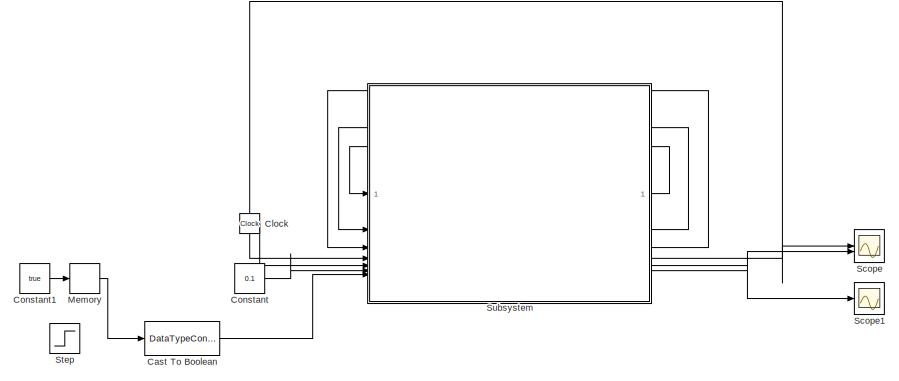
[diagram: root canvas - part 1/5, top left region]
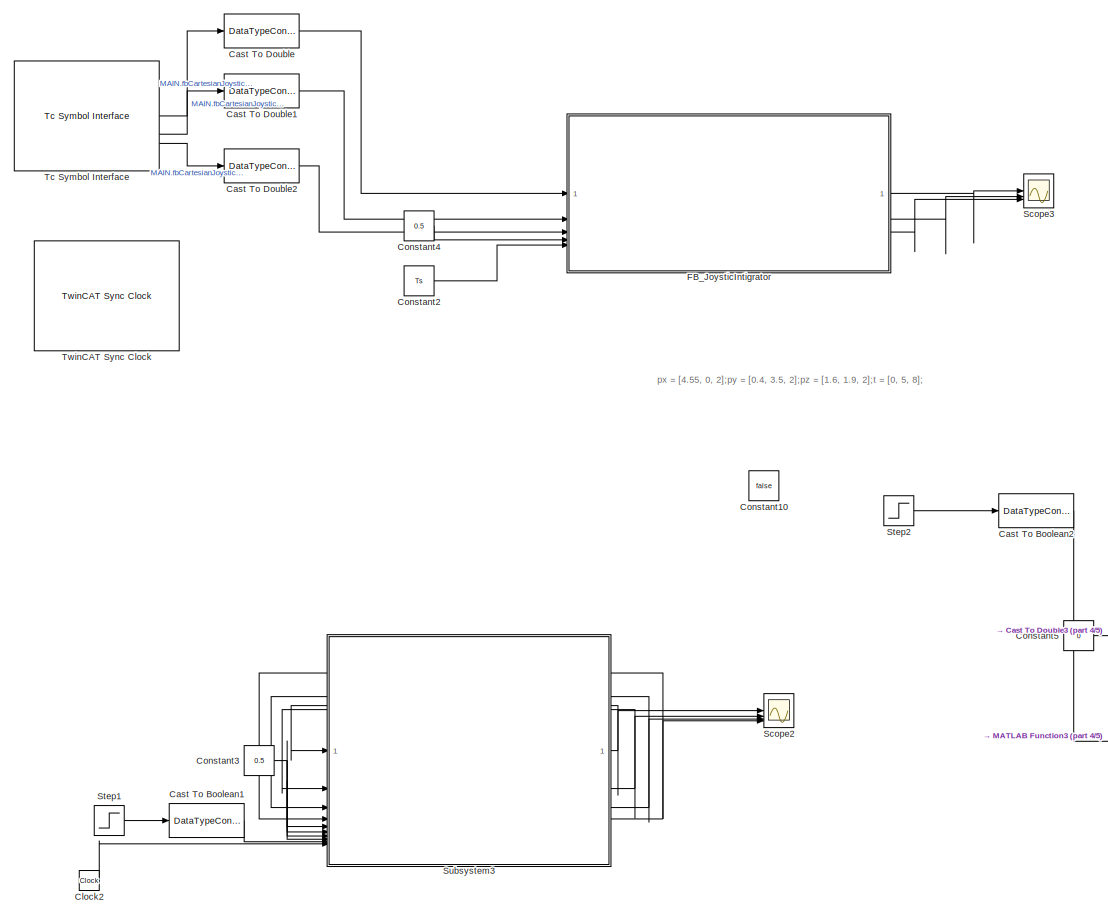
[diagram: root canvas - part 2/5, central region]
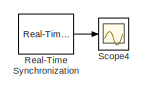
[diagram: root canvas - part 3/5, top left region]
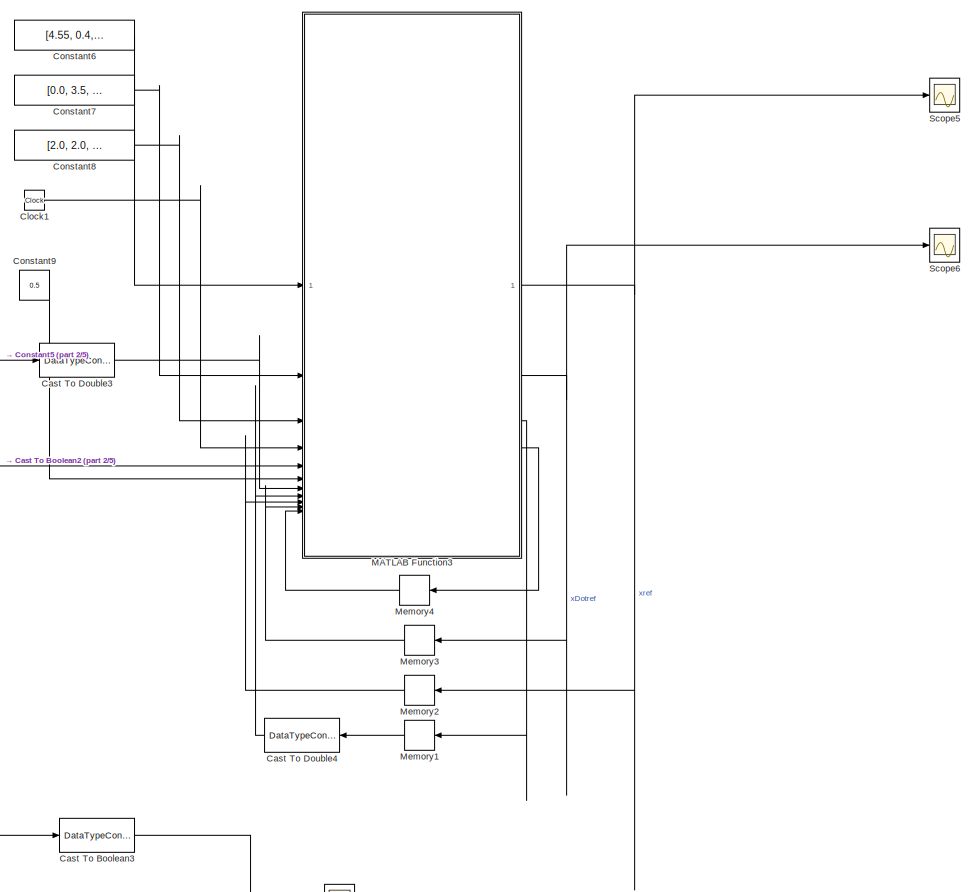
[diagram: root canvas - part 4/5, middle right region]
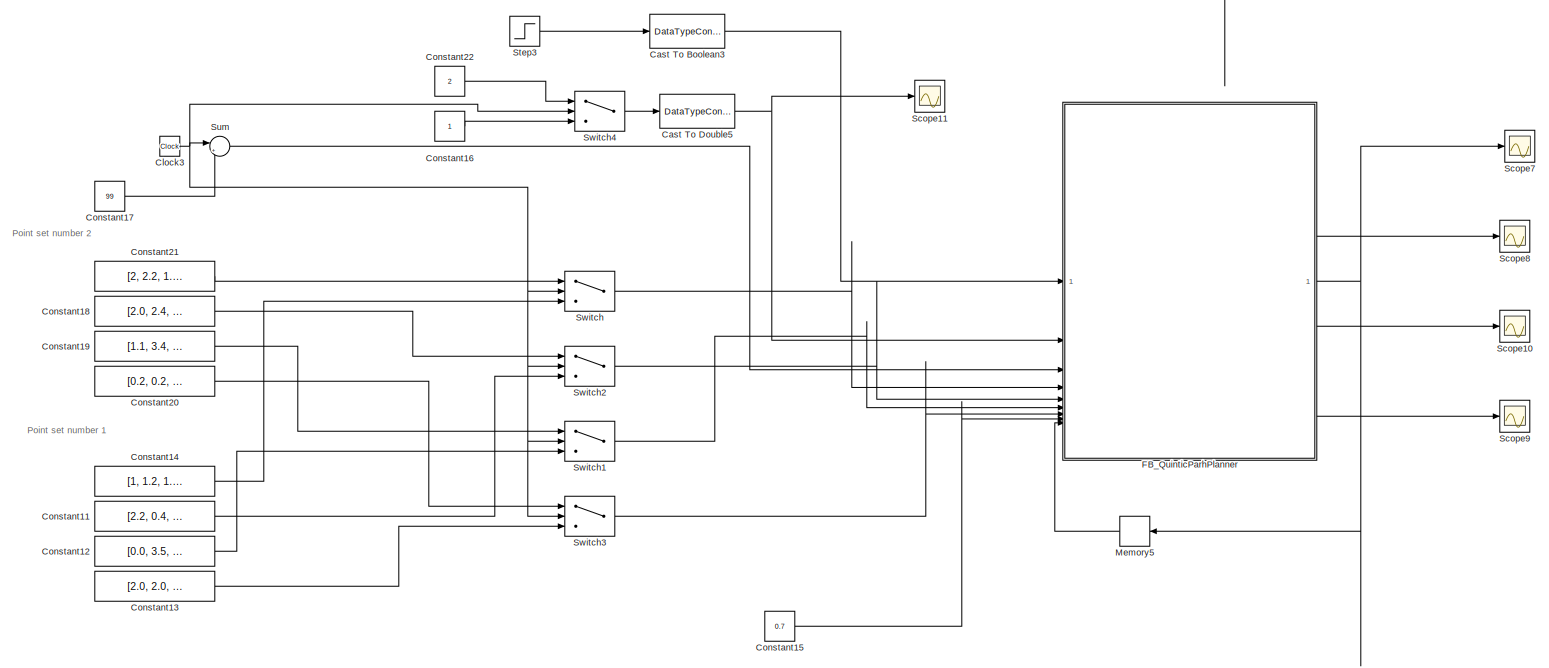
[diagram: root canvas - part 5/5, bottom right region]
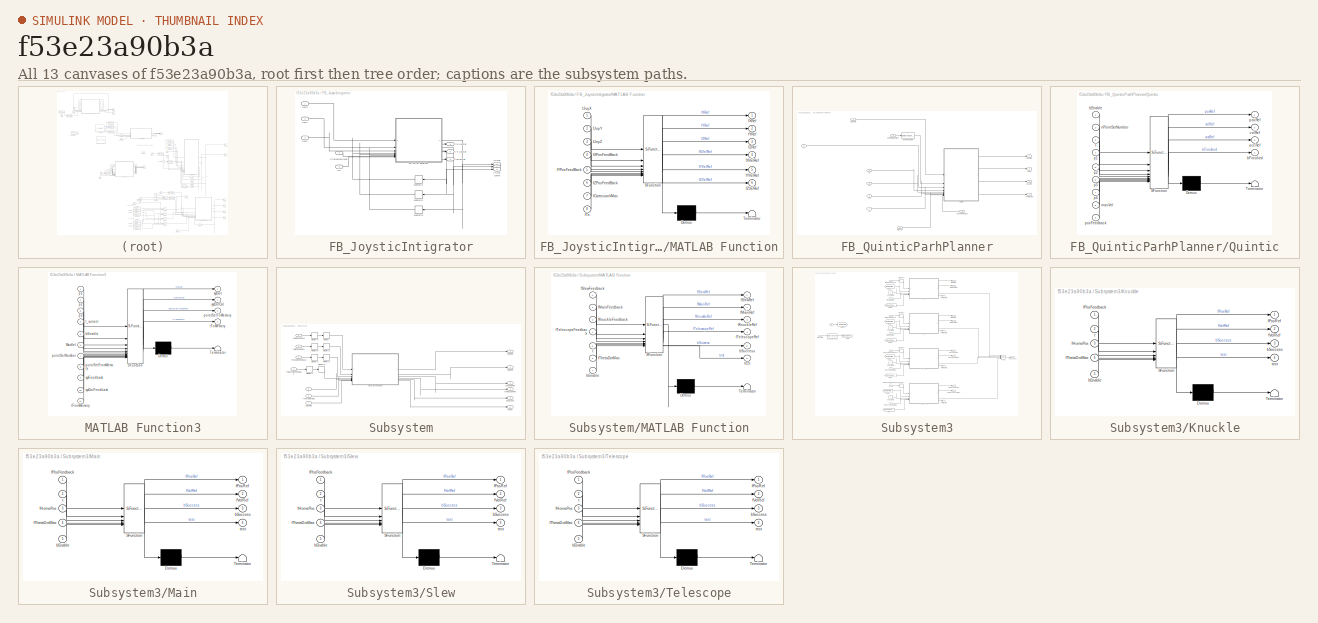
[diagram: thumbnail index - all 13 canvases of the model, root first then tree order]
MODEL slx_f53e23a90b3a
KIND model
CONFIG AbsTol = auto
CONFIG EnableMultiTasking = off
CONFIG FixedStep = Ts
CONFIG MaxStep = auto
CONFIG MinStep = auto
CONFIG RelTol = 1e-3
CONFIG SampleTimeConstraint = Unconstrained
CONFIG SolverName = FixedStepAuto
CONFIG StartTime = 0.0
CONFIG StopTime = 60
BLOCK [DataTypeConversion] Cast To Boolean
  Commented = on
  OutDataTypeStr = boolean
  RndMeth = Floor
  SaturateOnIntegerOverflow = off
BLOCK [DataTypeConversion] Cast To Boolean1
  Commented = on
  OutDataTypeStr = boolean
  RndMeth = Floor
  SaturateOnIntegerOverflow = off
BLOCK [DataTypeConversion] Cast To Boolean2
  OutDataTypeStr = boolean
  RndMeth = Floor
  SaturateOnIntegerOverflow = off
BLOCK [DataTypeConversion] Cast To Boolean3
  OutDataTypeStr = boolean
  RndMeth = Floor
  SaturateOnIntegerOverflow = off
BLOCK [DataTypeConversion] Cast To Double
  Commented = on
  OutDataTypeStr = double
  RndMeth = Floor
  SaturateOnIntegerOverflow = off
BLOCK [DataTypeConversion] Cast To Double1
  Commented = on
  OutDataTypeStr = double
  RndMeth = Floor
  SaturateOnIntegerOverflow = off
BLOCK [DataTypeConversion] Cast To Double2
  Commented = on
  OutDataTypeStr = double
  RndMeth = Floor
  SaturateOnIntegerOverflow = off
BLOCK [DataTypeConversion] Cast To Double3
  OutDataTypeStr = uint16
  RndMeth = Floor
  SaturateOnIntegerOverflow = off
BLOCK [DataTypeConversion] Cast To Double4
  NameLocation = top
  OutDataTypeStr = uint16
  RndMeth = Floor
  SaturateOnIntegerOverflow = off
BLOCK [DataTypeConversion] Cast To Double5
  OutDataTypeStr = uint16
  RndMeth = Floor
  SaturateOnIntegerOverflow = off
BLOCK [Clock] Clock
  Commented = on
BLOCK [Clock] Clock1
BLOCK [Clock] Clock2
  Commented = on
BLOCK [Clock] Clock3
BLOCK [Constant] Constant
  Commented = on
  Value = 0.1
BLOCK [Constant] Constant1
  Commented = on
  Value = true
BLOCK [Constant] Constant10
  Value = false
BLOCK [Constant] Constant11
  Value = [2.2, 0.4, 1.6]'
BLOCK [Constant] Constant12
  Value = [0.0, 3.5, 1.9]'
BLOCK [Constant] Constant13
  Value = [2.0, 2.0, 2.0]'
BLOCK [Constant] Constant14
  Value = [1, 1.2, 1.6]'
BLOCK [Constant] Constant15
  Value = 0.7
BLOCK [Constant] Constant16
BLOCK [Constant] Constant17
  Value = 99
BLOCK [Constant] Constant18
  Value = [2.0, 2.4, 0.6]'
BLOCK [Constant] Constant19
  Value = [1.1, 3.4, 1.0]'
BLOCK [Constant] Constant2
  Commented = on
  Value = Ts
BLOCK [Constant] Constant20
  Value = [0.2, 0.2, 0.2]'
BLOCK [Constant] Constant21
  Value = [2, 2.2, 1.6]'
BLOCK [Constant] Constant22
  Value = 2
BLOCK [Constant] Constant3
  Commented = on
  Value = 0.5
BLOCK [Constant] Constant4
  Commented = on
  Value = 0.5
BLOCK [Constant] Constant5
  Value = 0
BLOCK [Constant] Constant6
  Value = [4.55, 0.4, 1.6]'
BLOCK [Constant] Constant7
  Value = [0.0, 3.5, 1.9]'
BLOCK [Constant] Constant8
  Value = [2.0, 2.0, 2.0]'
BLOCK [Constant] Constant9
  Value = 0.5
BLOCK [SubSystem] FB_JoysticIntigrator
BLOCK [SubSystem] FB_JoysticIntigrator/MATLAB Function
  ErrorFcn = Stateflow.Translate.translate
  PermitHierarchicalResolution = ExplicitOnly
  SFBlockType = MATLAB Function
  TreatAsAtomicUnit = on
BLOCK [Demux] FB_JoysticIntigrator/MATLAB Function/ Demux 
  Outputs = 1
BLOCK [S-Function] FB_JoysticIntigrator/MATLAB Function/ SFunction 
  EnableBusSupport = on
  FunctionName = sf_sfun
  PortCounts = [8 7]
  SFcnIsStateOwnerBlock = off
  SFunctionDeploymentMode = off
  Tag = Stateflow S-Function 6
BLOCK [Terminator] FB_JoysticIntigrator/MATLAB Function/ Terminator 
BLOCK [Inport] FB_JoysticIntigrator/MATLAB Function/fCartesianVMax
  Port = 7
BLOCK [Inport] FB_JoysticIntigrator/MATLAB Function/fJoyX
BLOCK [Inport] FB_JoysticIntigrator/MATLAB Function/fJoyY
  Port = 2
BLOCK [Inport] FB_JoysticIntigrator/MATLAB Function/fJoyZ
  Port = 3
BLOCK [Inport] FB_JoysticIntigrator/MATLAB Function/fTs
  Port = 8
BLOCK [Inport] FB_JoysticIntigrator/MATLAB Function/fXPosFeedBack
  Port = 4
BLOCK [Outport] FB_JoysticIntigrator/MATLAB Function/fXRef
BLOCK [Outport] FB_JoysticIntigrator/MATLAB Function/fXVelRef
  Port = 4
BLOCK [Inport] FB_JoysticIntigrator/MATLAB Function/fYPosFeedBack
  Port = 5
BLOCK [Outport] FB_JoysticIntigrator/MATLAB Function/fYRef
  Port = 2
BLOCK [Outport] FB_JoysticIntigrator/MATLAB Function/fYVelRef
  Port = 5
BLOCK [Inport] FB_JoysticIntigrator/MATLAB Function/fZPosFeedBack
  Port = 6
BLOCK [Outport] FB_JoysticIntigrator/MATLAB Function/fZRef
  Port = 3
BLOCK [Outport] FB_JoysticIntigrator/MATLAB Function/fZVelRef
  Port = 6
BLOCK [Memory] FB_JoysticIntigrator/Memory1
  NameLocation = top
BLOCK [Memory] FB_JoysticIntigrator/Memory2
  NameLocation = top
BLOCK [Memory] FB_JoysticIntigrator/Memory3
  NameLocation = top
BLOCK [Inport] FB_JoysticIntigrator/fCartesianVMax
  Port = 4
BLOCK [Inport] FB_JoysticIntigrator/fJoyX
BLOCK [Inport] FB_JoysticIntigrator/fJoyY
  Port = 2
BLOCK [Inport] FB_JoysticIntigrator/fJoyZ
  Port = 3
BLOCK [Inport] FB_JoysticIntigrator/fTs
  Port = 5
BLOCK [Outport] FB_JoysticIntigrator/fXRef
BLOCK [Outport] FB_JoysticIntigrator/fXVelRef
  Port = 4
BLOCK [Outport] FB_JoysticIntigrator/fYRef
  Port = 2
BLOCK [Outport] FB_JoysticIntigrator/fYVelRef
  Port = 5
BLOCK [Outport] FB_JoysticIntigrator/fZRef
  Port = 3
BLOCK [Outport] FB_JoysticIntigrator/fZVelRef
  Port = 6
BLOCK [SubSystem] FB_QuinticParhPlanner
  NameLocation = top
BLOCK [DataTypeConversion] FB_QuinticParhPlanner/Cast To Double5
  OutDataTypeStr = uint16
  RndMeth = Floor
  SaturateOnIntegerOverflow = off
BLOCK [SubSystem] FB_QuinticParhPlanner/Quintic
  ErrorFcn = Stateflow.Translate.translate
  PermitHierarchicalResolution = ExplicitOnly
  SFBlockType = MATLAB Function
  TreatAsAtomicUnit = on
BLOCK [Demux] FB_QuinticParhPlanner/Quintic/ Demux 
  Outputs = 1
BLOCK [S-Function] FB_QuinticParhPlanner/Quintic/ SFunction 
  EnableBusSupport = on
  FunctionName = sf_sfun
  PortCounts = [9 5]
  SFcnIsStateOwnerBlock = off
  SFunctionDeploymentMode = off
  Tag = Stateflow S-Function 9
BLOCK [Terminator] FB_QuinticParhPlanner/Quintic/ Terminator 
BLOCK [Outport] FB_QuinticParhPlanner/Quintic/accRef
  Port = 3
BLOCK [Inport] FB_QuinticParhPlanner/Quintic/bEnable
BLOCK [Outport] FB_QuinticParhPlanner/Quintic/bFinished
  Port = 4
BLOCK [Inport] FB_QuinticParhPlanner/Quintic/maxVel
  Port = 8
BLOCK [Inport] FB_QuinticParhPlanner/Quintic/nPointSetNumber
  Port = 2
BLOCK [Inport] FB_QuinticParhPlanner/Quintic/p1
  Port = 4
BLOCK [Inport] FB_QuinticParhPlanner/Quintic/p2
  Port = 5
BLOCK [Inport] FB_QuinticParhPlanner/Quintic/p3
  Port = 6
BLOCK [Inport] FB_QuinticParhPlanner/Quintic/p4
  Port = 7
BLOCK [Inport] FB_QuinticParhPlanner/Quintic/posFeedback
  Port = 9
BLOCK [Outport] FB_QuinticParhPlanner/Quintic/posRef
BLOCK [Inport] FB_QuinticParhPlanner/Quintic/t
  Port = 3
BLOCK [Outport] FB_QuinticParhPlanner/Quintic/velRef
  Port = 2
  VectorParamsAs1DForOutWhenUnconnected = off
BLOCK [Outport] FB_QuinticParhPlanner/accRef
  Port = 3
BLOCK [Inport] FB_QuinticParhPlanner/bEnable
BLOCK [Outport] FB_QuinticParhPlanner/bFinished
  Port = 4
BLOCK [Inport] FB_QuinticParhPlanner/maxVel
  Port = 8
BLOCK [Inport] FB_QuinticParhPlanner/nPointSetNumber
  Port = 2
BLOCK [Inport] FB_QuinticParhPlanner/p1
  Port = 4
BLOCK [Inport] FB_QuinticParhPlanner/p2
  Port = 5
BLOCK [Inport] FB_QuinticParhPlanner/p3
  Port = 6
BLOCK [Inport] FB_QuinticParhPlanner/p4
  Port = 7
BLOCK [Inport] FB_QuinticParhPlanner/posFeedback
  Port = 9
BLOCK [Outport] FB_QuinticParhPlanner/posRef
BLOCK [Inport] FB_QuinticParhPlanner/t
  Port = 3
BLOCK [Outport] FB_QuinticParhPlanner/velRef
  Port = 2
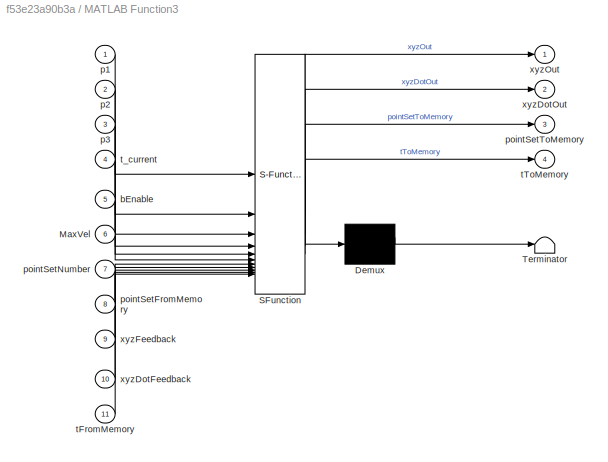
BLOCK [SubSystem] MATLAB Function3
  ErrorFcn = Stateflow.Translate.translate
  PermitHierarchicalResolution = ExplicitOnly
  SFBlockType = MATLAB Function
  TreatAsAtomicUnit = on
BLOCK [Demux] MATLAB Function3/ Demux 
  Outputs = 1
BLOCK [S-Function] MATLAB Function3/ SFunction 
  EnableBusSupport = on
  FunctionName = sf_sfun
  PortCounts = [11 5]
  SFcnIsStateOwnerBlock = off
  SFunctionDeploymentMode = off
  Tag = Stateflow S-Function 7
BLOCK [Terminator] MATLAB Function3/ Terminator 
BLOCK [Inport] MATLAB Function3/MaxVel
  Port = 6
BLOCK [Inport] MATLAB Function3/bEnable
  Port = 5
BLOCK [Inport] MATLAB Function3/p1
BLOCK [Inport] MATLAB Function3/p2
  Port = 2
BLOCK [Inport] MATLAB Function3/p3
  Port = 3
BLOCK [Inport] MATLAB Function3/pointSetFromMemory
  Port = 8
BLOCK [Inport] MATLAB Function3/pointSetNumber
  Port = 7
BLOCK [Outport] MATLAB Function3/pointSetToMemory
  Port = 3
BLOCK [Inport] MATLAB Function3/tFromMemory
  Port = 11
BLOCK [Outport] MATLAB Function3/tToMemory
  Port = 4
BLOCK [Inport] MATLAB Function3/t_current
  Port = 4
BLOCK [Inport] MATLAB Function3/xyzDotFeedback
  Port = 10
BLOCK [Outport] MATLAB Function3/xyzDotOut
  Port = 2
BLOCK [Inport] MATLAB Function3/xyzFeedback
  Port = 9
BLOCK [Outport] MATLAB Function3/xyzOut
BLOCK [Memory] Memory
  Commented = on
  InitialCondition = false
BLOCK [Memory] Memory1
  NameLocation = top
BLOCK [Memory] Memory2
  InitialCondition = [0, 0, 0]'
  NameLocation = top
BLOCK [Memory] Memory3
  InitialCondition = [0, 0, 0]'
  NameLocation = top
BLOCK [Memory] Memory4
  NameLocation = top
BLOCK [Memory] Memory5
  InitialCondition = [1, 2, 3]'
  NameLocation = top
BLOCK [Reference] Real-Time Synchronization  REF=sldrtlib/Real-Time
Synchronization
  Commented = on
  SourceBlock = sldrtlib/Real-Time\nSynchronization
  SourceType = Simulink Desktop Real-Time Synchronization
BLOCK [Scope] Scope
  Commented = on
  Floating = off
  NumInputPorts = 2
  ScopeSpecificationString = Simulink.scopes.TimeScopeBlockCfg('CurrentConfiguration', extmgr.ConfigurationSet(extmgr.Configuration('Core','General UI',true),extmgr.Configuration('Core','Source UI',true),extmgr.Configuration('Sources','WiredSimulink',true),extmgr.Configuration('Visuals','Time Domain',true,'SerializedDisplays',{struct('MinYLimReal','-0.5','MaxYLimReal','4.5','YLabelReal','','MinYLimMag','0.00000','MaxYLimMag',...<+1482ch>
BLOCK [Scope] Scope1
  Commented = on
  Floating = off
  NumInputPorts = 1
  ScopeSpecificationString = Simulink.scopes.TimeScopeBlockCfg('CurrentConfiguration', extmgr.ConfigurationSet(extmgr.Configuration('Core','General UI',true),extmgr.Configuration('Core','Source UI',true),extmgr.Configuration('Sources','WiredSimulink',true,'DataLoggingVariableName','ScopeData1'),extmgr.Configuration('Visuals','Time Domain',true,'SerializedDisplays',{struct('MinYLimReal','-1.00000','MaxYLimReal','1.00000','YLab...<+1488ch>
BLOCK [Scope] Scope10
  Floating = off
  NumInputPorts = 1
  ScopeSpecificationString = Simulink.scopes.TimeScopeBlockCfg('CurrentConfiguration', extmgr.ConfigurationSet(extmgr.Configuration('Core','General UI',true),extmgr.Configuration('Core','Source UI',true),extmgr.Configuration('Sources','WiredSimulink',true,'DataLoggingVariableName','ScopeData4'),extmgr.Configuration('Visuals','Time Domain',true,'SerializedDisplays',{struct('MinYLimReal','-0.70266','MaxYLimReal','0.71678','YLab...<+1558ch>
BLOCK [Scope] Scope11
  Floating = off
  NumInputPorts = 1
  ScopeSpecificationString = Simulink.scopes.TimeScopeBlockCfg('CurrentConfiguration', extmgr.ConfigurationSet(extmgr.Configuration('Core','General UI',true),extmgr.Configuration('Core','Source UI',true),extmgr.Configuration('Sources','WiredSimulink',true,'DataLoggingVariableName','ScopeData5'),extmgr.Configuration('Visuals','Time Domain',true,'SerializedDisplays',{struct('MinYLimReal','0.875','MaxYLimReal','2.125','YLabelRea...<+1502ch>
BLOCK [Scope] Scope2
  Floating = off
  NumInputPorts = 4
  ScopeSpecificationString = Simulink.scopes.TimeScopeBlockCfg('CurrentConfiguration', extmgr.ConfigurationSet(extmgr.Configuration('Core','General UI',true),extmgr.Configuration('Core','Source UI',true),extmgr.Configuration('Sources','WiredSimulink',true,'DataLoggingVariableName','ScopeData2'),extmgr.Configuration('Visuals','Time Domain',true,'SerializedDisplays',{struct('MinYLimReal','-0.375','MaxYLimReal','3.375','YLabelRe...<+1547ch>
BLOCK [Scope] Scope3
  Commented = on
  Floating = off
  NumInputPorts = 3
  ScopeSpecificationString = Simulink.scopes.TimeScopeBlockCfg('CurrentConfiguration', extmgr.ConfigurationSet(extmgr.Configuration('Core','General UI',true),extmgr.Configuration('Core','Source UI',true),extmgr.Configuration('Sources','WiredSimulink',true,'DataLoggingVariableName','ScopeData2'),extmgr.Configuration('Visuals','Time Domain',true,'SerializedDisplays',{struct('MinYLimReal','-0.21069','MaxYLimReal','0.05794','YLab...<+1561ch>
BLOCK [Scope] Scope4
  Commented = on
  Floating = off
  NumInputPorts = 1
  ScopeSpecificationString = Simulink.scopes.TimeScopeBlockCfg('CurrentConfiguration', extmgr.ConfigurationSet(extmgr.Configuration('Core','General UI',true),extmgr.Configuration('Core','Source UI',true),extmgr.Configuration('Sources','WiredSimulink',true,'DataLoggingVariableName','ScopeData1'),extmgr.Configuration('Visuals','Time Domain',true,'SerializedDisplays',{struct('MinYLimReal','-1.00000','MaxYLimReal','9.00000','YLab...<+1503ch>
BLOCK [Scope] Scope5
  Floating = off
  NumInputPorts = 1
  ScopeSpecificationString = Simulink.scopes.TimeScopeBlockCfg('CurrentConfiguration', extmgr.ConfigurationSet(extmgr.Configuration('Core','General UI',true),extmgr.Configuration('Core','Source UI',true),extmgr.Configuration('Sources','WiredSimulink',true,'DataLoggingVariableName','ScopeData1'),extmgr.Configuration('Visuals','Time Domain',true,'SerializedDisplays',{struct('MinYLimReal','-1.3729','MaxYLimReal','5.64482','YLabe...<+1616ch>
BLOCK [Scope] Scope6
  Floating = off
  NumInputPorts = 1
  ScopeSpecificationString = Simulink.scopes.TimeScopeBlockCfg('CurrentConfiguration', extmgr.ConfigurationSet(extmgr.Configuration('Core','General UI',true),extmgr.Configuration('Core','Source UI',true),extmgr.Configuration('Sources','WiredSimulink',true,'DataLoggingVariableName','ScopeData2'),extmgr.Configuration('Visuals','Time Domain',true,'SerializedDisplays',{struct('MinYLimReal','-1.3729','MaxYLimReal','5.64482','YLabe...<+1625ch>
BLOCK [Scope] Scope7
  Floating = off
  NumInputPorts = 1
  ScopeSpecificationString = Simulink.scopes.TimeScopeBlockCfg('CurrentConfiguration', extmgr.ConfigurationSet(extmgr.Configuration('Core','General UI',true),extmgr.Configuration('Core','Source UI',true),extmgr.Configuration('Sources','WiredSimulink',true,'DataLoggingVariableName','ScopeData1'),extmgr.Configuration('Visuals','Time Domain',true,'SerializedDisplays',{struct('MinYLimReal','-0.60847','MaxYLimReal','4.03633','YLab...<+1558ch>
BLOCK [Scope] Scope8
  Floating = off
  NumInputPorts = 1
  ScopeSpecificationString = Simulink.scopes.TimeScopeBlockCfg('CurrentConfiguration', extmgr.ConfigurationSet(extmgr.Configuration('Core','General UI',true),extmgr.Configuration('Core','Source UI',true),extmgr.Configuration('Sources','WiredSimulink',true,'DataLoggingVariableName','ScopeData2'),extmgr.Configuration('Visuals','Time Domain',true,'SerializedDisplays',{struct('MinYLimReal','-0.73835','MaxYLimReal','0.68802','YLab...<+1558ch>
BLOCK [Scope] Scope9
  Floating = off
  NumInputPorts = 1
  ScopeSpecificationString = Simulink.scopes.TimeScopeBlockCfg('CurrentConfiguration', extmgr.ConfigurationSet(extmgr.Configuration('Core','General UI',true),extmgr.Configuration('Core','Source UI',true),extmgr.Configuration('Sources','WiredSimulink',true,'DataLoggingVariableName','ScopeData3'),extmgr.Configuration('Visuals','Time Domain',true,'SerializedDisplays',{struct('MinYLimReal','-0.125','MaxYLimReal','1.125','YLabelRe...<+1509ch>
BLOCK [Step] Step
  Commented = on
  SampleTime = 0
BLOCK [Step] Step1
  Commented = on
  SampleTime = 0
BLOCK [Step] Step2
  SampleTime = 0
  Time = 5
BLOCK [Step] Step3
  SampleTime = 0
  Time = 5
BLOCK [SubSystem] Subsystem
  Commented = on
BLOCK [SubSystem] Subsystem/MATLAB Function
  ErrorFcn = Stateflow.Translate.translate
  PermitHierarchicalResolution = ExplicitOnly
  SFBlockType = MATLAB Function
  TreatAsAtomicUnit = on
BLOCK [Demux] Subsystem/MATLAB Function/ Demux 
  Outputs = 1
BLOCK [S-Function] Subsystem/MATLAB Function/ SFunction 
  EnableBusSupport = on
  FunctionName = sf_sfun
  PortCounts = [7 7]
  SFcnIsStateOwnerBlock = off
  SFunctionDeploymentMode = off
  Tag = Stateflow S-Function 1
BLOCK [Terminator] Subsystem/MATLAB Function/ Terminator 
BLOCK [Inport] Subsystem/MATLAB Function/bEnable
  Port = 7
BLOCK [Outport] Subsystem/MATLAB Function/bSuccess
  Port = 5
BLOCK [Inport] Subsystem/MATLAB Function/fKnuckleFeedback
  Port = 3
BLOCK [Outport] Subsystem/MATLAB Function/fKnuckleRef
  Port = 3
BLOCK [Inport] Subsystem/MATLAB Function/fMainFeedback
  Port = 2
BLOCK [Outport] Subsystem/MATLAB Function/fMainRef
  Port = 2
BLOCK [Inport] Subsystem/MATLAB Function/fSlewFeedback
BLOCK [Outport] Subsystem/MATLAB Function/fSlewRef
BLOCK [Inport] Subsystem/MATLAB Function/fTelescopeFeedback
  Port = 4
BLOCK [Outport] Subsystem/MATLAB Function/fTelescopeRef
  Port = 4
BLOCK [Inport] Subsystem/MATLAB Function/fThetaDotMax
  Port = 6
BLOCK [Inport] Subsystem/MATLAB Function/t
  Port = 5
BLOCK [Outport] Subsystem/MATLAB Function/test
  Port = 6
BLOCK [Memory] Subsystem/Memory
  InitialCondition = thetaList0(1)
BLOCK [Memory] Subsystem/Memory1
  InitialCondition = thetaList0(2)
BLOCK [Memory] Subsystem/Memory2
  InitialCondition = thetaList0(3)
BLOCK [Memory] Subsystem/Memory3
  InitialCondition = telescope0
BLOCK [Memory] Subsystem/Memory4
  InitialCondition = thetaList0(1)
BLOCK [Memory] Subsystem/Memory5
  InitialCondition = thetaList0(2)
BLOCK [Memory] Subsystem/Memory6
  InitialCondition = thetaList0(3)
BLOCK [Memory] Subsystem/Memory7
  InitialCondition = telescope0
BLOCK [Inport] Subsystem/bEnable
  Port = 7
BLOCK [Outport] Subsystem/bSuccess
  Port = 5
BLOCK [Outport] Subsystem/bTest
  Port = 6
BLOCK [Inport] Subsystem/fKnuckleFeedback
  Port = 3
BLOCK [Outport] Subsystem/fKnuckleRef
  Port = 3
BLOCK [Inport] Subsystem/fMainFeedback
  Port = 2
BLOCK [Outport] Subsystem/fMainRef
  Port = 2
BLOCK [Inport] Subsystem/fSlewFeedback
BLOCK [Outport] Subsystem/fSlewRef
BLOCK [Inport] Subsystem/fTelescopeFeedback
  Port = 4
BLOCK [Outport] Subsystem/fTelescopeRef
  Port = 4
BLOCK [Inport] Subsystem/fThetaDotMax
  Port = 6
BLOCK [Inport] Subsystem/t
  Port = 5
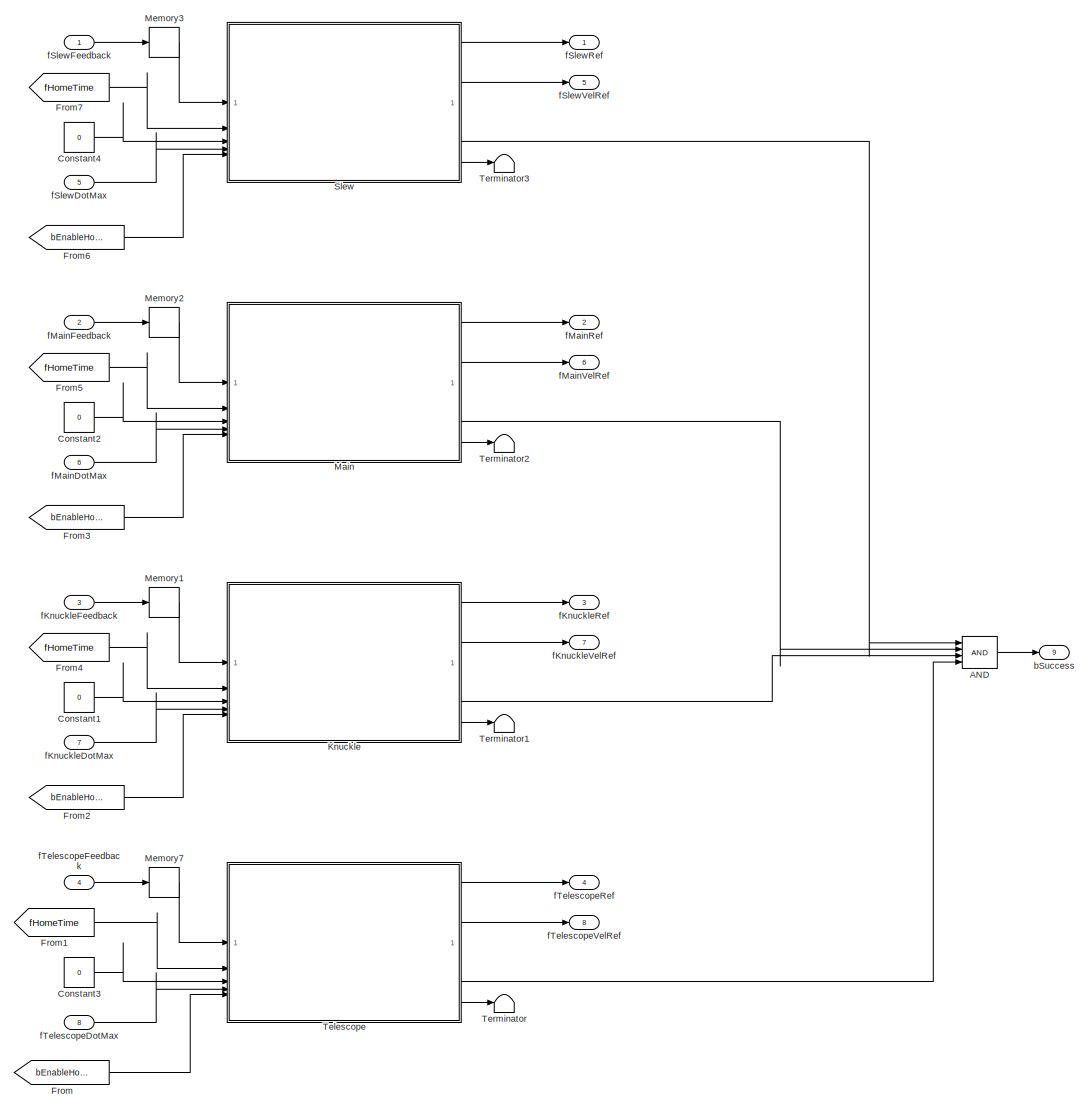
[diagram: Subsystem3 - part 1/2, center side, full height]
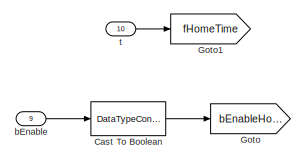
[diagram: Subsystem3 - part 2/2, middle left region]
BLOCK [SubSystem] Subsystem3
  Commented = on
BLOCK [Logic] Subsystem3/AND
  AllPortsSameDT = off
  IconShape = distinctive
  Inputs = 4
  OutDataTypeStr = boolean
BLOCK [DataTypeConversion] Subsystem3/Cast To Boolean
  OutDataTypeStr = boolean
  RndMeth = Floor
  SaturateOnIntegerOverflow = off
BLOCK [Constant] Subsystem3/Constant1
  Value = 0
BLOCK [Constant] Subsystem3/Constant2
  Value = 0
BLOCK [Constant] Subsystem3/Constant3
  Value = 0
BLOCK [Constant] Subsystem3/Constant4
  Value = 0
BLOCK [From] Subsystem3/From
  GotoTag = bEnableHome
BLOCK [From] Subsystem3/From1
  GotoTag = fHomeTime
BLOCK [From] Subsystem3/From2
  GotoTag = bEnableHome
BLOCK [From] Subsystem3/From3
  GotoTag = bEnableHome
BLOCK [From] Subsystem3/From4
  GotoTag = fHomeTime
BLOCK [From] Subsystem3/From5
  GotoTag = fHomeTime
BLOCK [From] Subsystem3/From6
  GotoTag = bEnableHome
BLOCK [From] Subsystem3/From7
  GotoTag = fHomeTime
BLOCK [Goto] Subsystem3/Goto
  GotoTag = bEnableHome
BLOCK [Goto] Subsystem3/Goto1
  GotoTag = fHomeTime
BLOCK [SubSystem] Subsystem3/Knuckle
  ErrorFcn = Stateflow.Translate.translate
  PermitHierarchicalResolution = ExplicitOnly
  SFBlockType = MATLAB Function
  TreatAsAtomicUnit = on
BLOCK [Demux] Subsystem3/Knuckle/ Demux 
  Outputs = 1
BLOCK [S-Function] Subsystem3/Knuckle/ SFunction 
  EnableBusSupport = on
  FunctionName = sf_sfun
  PortCounts = [5 5]
  SFcnIsStateOwnerBlock = off
  SFunctionDeploymentMode = off
  Tag = Stateflow S-Function 2
BLOCK [Terminator] Subsystem3/Knuckle/ Terminator 
BLOCK [Inport] Subsystem3/Knuckle/bEnable
  Port = 5
BLOCK [Outport] Subsystem3/Knuckle/bSuccess
  Port = 3
BLOCK [Inport] Subsystem3/Knuckle/fHomePos
  Port = 3
BLOCK [Inport] Subsystem3/Knuckle/fPosFeedback
BLOCK [Outport] Subsystem3/Knuckle/fPosRef
BLOCK [Inport] Subsystem3/Knuckle/fThetaDotMax
  Port = 4
BLOCK [Outport] Subsystem3/Knuckle/fVelRef
  Port = 2
BLOCK [Inport] Subsystem3/Knuckle/t
  Port = 2
BLOCK [Outport] Subsystem3/Knuckle/test
  Port = 4
BLOCK [SubSystem] Subsystem3/Main
  ErrorFcn = Stateflow.Translate.translate
  PermitHierarchicalResolution = ExplicitOnly
  SFBlockType = MATLAB Function
  TreatAsAtomicUnit = on
BLOCK [Demux] Subsystem3/Main/ Demux 
  Outputs = 1
BLOCK [S-Function] Subsystem3/Main/ SFunction 
  EnableBusSupport = on
  FunctionName = sf_sfun
  PortCounts = [5 5]
  SFcnIsStateOwnerBlock = off
  SFunctionDeploymentMode = off
  Tag = Stateflow S-Function 3
BLOCK [Terminator] Subsystem3/Main/ Terminator 
BLOCK [Inport] Subsystem3/Main/bEnable
  Port = 5
BLOCK [Outport] Subsystem3/Main/bSuccess
  Port = 3
BLOCK [Inport] Subsystem3/Main/fHomePos
  Port = 3
BLOCK [Inport] Subsystem3/Main/fPosFeedback
BLOCK [Outport] Subsystem3/Main/fPosRef
BLOCK [Inport] Subsystem3/Main/fThetaDotMax
  Port = 4
BLOCK [Outport] Subsystem3/Main/fVelRef
  Port = 2
BLOCK [Inport] Subsystem3/Main/t
  Port = 2
BLOCK [Outport] Subsystem3/Main/test
  Port = 4
BLOCK [Memory] Subsystem3/Memory1
  InitialCondition = thetaList0(3)
BLOCK [Memory] Subsystem3/Memory2
  InitialCondition = thetaList0(2)
BLOCK [Memory] Subsystem3/Memory3
  InitialCondition = thetaList0(2)
BLOCK [Memory] Subsystem3/Memory7
  InitialCondition = telescope0
BLOCK [SubSystem] Subsystem3/Slew
  ErrorFcn = Stateflow.Translate.translate
  PermitHierarchicalResolution = ExplicitOnly
  SFBlockType = MATLAB Function
  TreatAsAtomicUnit = on
BLOCK [Demux] Subsystem3/Slew/ Demux 
  Outputs = 1
BLOCK [S-Function] Subsystem3/Slew/ SFunction 
  EnableBusSupport = on
  FunctionName = sf_sfun
  PortCounts = [5 5]
  SFcnIsStateOwnerBlock = off
  SFunctionDeploymentMode = off
  Tag = Stateflow S-Function 4
BLOCK [Terminator] Subsystem3/Slew/ Terminator 
BLOCK [Inport] Subsystem3/Slew/bEnable
  Port = 5
BLOCK [Outport] Subsystem3/Slew/bSuccess
  Port = 3
BLOCK [Inport] Subsystem3/Slew/fHomePos
  Port = 3
BLOCK [Inport] Subsystem3/Slew/fPosFeedback
BLOCK [Outport] Subsystem3/Slew/fPosRef
BLOCK [Inport] Subsystem3/Slew/fThetaDotMax
  Port = 4
BLOCK [Outport] Subsystem3/Slew/fVelRef
  Port = 2
BLOCK [Inport] Subsystem3/Slew/t
  Port = 2
BLOCK [Outport] Subsystem3/Slew/test
  Port = 4
BLOCK [SubSystem] Subsystem3/Telescope
  ErrorFcn = Stateflow.Translate.translate
  PermitHierarchicalResolution = ExplicitOnly
  SFBlockType = MATLAB Function
  TreatAsAtomicUnit = on
BLOCK [Demux] Subsystem3/Telescope/ Demux 
  Outputs = 1
BLOCK [S-Function] Subsystem3/Telescope/ SFunction 
  EnableBusSupport = on
  FunctionName = sf_sfun
  PortCounts = [5 5]
  SFcnIsStateOwnerBlock = off
  SFunctionDeploymentMode = off
  Tag = Stateflow S-Function 5
BLOCK [Terminator] Subsystem3/Telescope/ Terminator 
BLOCK [Inport] Subsystem3/Telescope/bEnable
  Port = 5
BLOCK [Outport] Subsystem3/Telescope/bSuccess
  Port = 3
BLOCK [Inport] Subsystem3/Telescope/fHomePos
  Port = 3
BLOCK [Inport] Subsystem3/Telescope/fPosFeedback
BLOCK [Outport] Subsystem3/Telescope/fPosRef
BLOCK [Inport] Subsystem3/Telescope/fThetaDotMax
  Port = 4
BLOCK [Outport] Subsystem3/Telescope/fVelRef
  Port = 2
BLOCK [Inport] Subsystem3/Telescope/t
  Port = 2
BLOCK [Outport] Subsystem3/Telescope/test
  Port = 4
BLOCK [Terminator] Subsystem3/Terminator
BLOCK [Terminator] Subsystem3/Terminator1
BLOCK [Terminator] Subsystem3/Terminator2
BLOCK [Terminator] Subsystem3/Terminator3
BLOCK [Inport] Subsystem3/bEnable
  Port = 9
BLOCK [Outport] Subsystem3/bSuccess
  Port = 9
BLOCK [Inport] Subsystem3/fKnuckleDotMax
  Port = 7
BLOCK [Inport] Subsystem3/fKnuckleFeedback
  Port = 3
BLOCK [Outport] Subsystem3/fKnuckleRef
  Port = 3
BLOCK [Outport] Subsystem3/fKnuckleVelRef
  Port = 7
BLOCK [Inport] Subsystem3/fMainDotMax
  Port = 6
BLOCK [Inport] Subsystem3/fMainFeedback
  Port = 2
BLOCK [Outport] Subsystem3/fMainRef
  Port = 2
BLOCK [Outport] Subsystem3/fMainVelRef
  Port = 6
BLOCK [Inport] Subsystem3/fSlewDotMax
  Port = 5
BLOCK [Inport] Subsystem3/fSlewFeedback
BLOCK [Outport] Subsystem3/fSlewRef
BLOCK [Outport] Subsystem3/fSlewVelRef
  Port = 5
BLOCK [Inport] Subsystem3/fTelescopeDotMax
  Port = 8
BLOCK [Inport] Subsystem3/fTelescopeFeedback
  Port = 4
BLOCK [Outport] Subsystem3/fTelescopeRef
  Port = 4
BLOCK [Outport] Subsystem3/fTelescopeVelRef
  Port = 8
BLOCK [Inport] Subsystem3/t
  Port = 10
BLOCK [Sum] Sum
  Inputs = |++
BLOCK [Switch] Switch
  Criteria = u2 > Threshold
  InputSameDT = off
  SaturateOnIntegerOverflow = off
  Threshold = 25
BLOCK [Switch] Switch1
  Criteria = u2 > Threshold
  InputSameDT = off
  SaturateOnIntegerOverflow = off
  Threshold = 25
BLOCK [Switch] Switch2
  Criteria = u2 > Threshold
  InputSameDT = off
  SaturateOnIntegerOverflow = off
  Threshold = 25
BLOCK [Switch] Switch3
  Criteria = u2 > Threshold
  InputSameDT = off
  SaturateOnIntegerOverflow = off
  Threshold = 25
BLOCK [Switch] Switch4
  Criteria = u2 > Threshold
  InputSameDT = off
  SaturateOnIntegerOverflow = off
  Threshold = 15
BLOCK [Reference] Tc Symbol Interface  REF=TcSimInterface/Tc Symbol Interface
  Commented = on
  SourceBlock = TcSimInterface/Tc Symbol Interface
  SourceProductName = Beckhoff TwinCAT Interface
  SourceType = Tc Symbol Interface
BLOCK [Reference] TwinCAT Sync Clock  REF=TcSimInterface/TwinCAT Sync Clock
  Commented = on
  SourceBlock = TcSimInterface/TwinCAT Sync Clock
  SourceProductName = Beckhoff TwinCAT Interface
  SourceType = TwinCAT Sync Clock
ANNOTATION (root): Point set number 1
ANNOTATION (root): Point set number 2
ANNOTATION (root): px = [4.55, 0, 2];py = [0.4, 3.5, 2];pz = [1.6, 1.9, 2];t = [0, 5, 8];
LINE Cast To Boolean1:1 -> Subsystem3:9
LINE Cast To Boolean2:1 -> MATLAB Function3:5
LINE Cast To Boolean3:1 -> FB_QuinticParhPlanner:1
LINE Cast To Boolean:1 -> Subsystem:7
LINE Cast To Double1:1 -> FB_JoysticIntigrator:2
LINE Cast To Double2:1 -> FB_JoysticIntigrator:3
LINE Cast To Double3:1 -> MATLAB Function3:7
LINE Cast To Double4:1 -> MATLAB Function3:8
NET Cast To Double5:1 -> FB_QuinticParhPlanner:2, Scope11:1
LINE Cast To Double:1 -> FB_JoysticIntigrator:1
LINE Clock1:1 -> MATLAB Function3:4
LINE Clock2:1 -> Subsystem3:10
NET Clock3:1 -> Sum:1, Switch1:2, Switch2:2, Switch3:2, Switch4:2, Switch:2
LINE Clock:1 -> Subsystem:5
LINE Constant11:1 -> Switch2:3
LINE Constant12:1 -> Switch1:3
LINE Constant13:1 -> Switch3:3
LINE Constant14:1 -> Switch:3
LINE Constant15:1 -> FB_QuinticParhPlanner:8
LINE Constant16:1 -> Switch4:3
LINE Constant17:1 -> Sum:2
LINE Constant18:1 -> Switch2:1
LINE Constant19:1 -> Switch1:1
LINE Constant1:1 -> Memory:1
LINE Constant20:1 -> Switch3:1
LINE Constant21:1 -> Switch:1
LINE Constant22:1 -> Switch4:1
LINE Constant2:1 -> FB_JoysticIntigrator:5
NET Constant3:1 -> Subsystem3:5, Subsystem3:6, Subsystem3:7, Subsystem3:8
LINE Constant4:1 -> FB_JoysticIntigrator:4
LINE Constant5:1 -> Cast To Double3:1
LINE Constant6:1 -> MATLAB Function3:1
LINE Constant7:1 -> MATLAB Function3:2
LINE Constant8:1 -> MATLAB Function3:3
LINE Constant9:1 -> MATLAB Function3:6
LINE Constant:1 -> Subsystem:6
NET FB_JoysticIntigrator/MATLAB Function:1 -> FB_JoysticIntigrator/Memory3:1, FB_JoysticIntigrator/fXRef:1
NET FB_JoysticIntigrator/MATLAB Function:2 -> FB_JoysticIntigrator/Memory2:1, FB_JoysticIntigrator/fYRef:1
NET FB_JoysticIntigrator/MATLAB Function:3 -> FB_JoysticIntigrator/Memory1:1, FB_JoysticIntigrator/fZRef:1
LINE FB_JoysticIntigrator/MATLAB Function:4 -> FB_JoysticIntigrator/fXVelRef:1
LINE FB_JoysticIntigrator/MATLAB Function:5 -> FB_JoysticIntigrator/fYVelRef:1
LINE FB_JoysticIntigrator/MATLAB Function:6 -> FB_JoysticIntigrator/fZVelRef:1
LINE FB_JoysticIntigrator/Memory1:1 -> FB_JoysticIntigrator/MATLAB Function:4
LINE FB_JoysticIntigrator/Memory2:1 -> FB_JoysticIntigrator/MATLAB Function:5
LINE FB_JoysticIntigrator/Memory3:1 -> FB_JoysticIntigrator/MATLAB Function:6
LINE FB_JoysticIntigrator/fCartesianVMax:1 -> FB_JoysticIntigrator/MATLAB Function:7
LINE FB_JoysticIntigrator/fJoyX:1 -> FB_JoysticIntigrator/MATLAB Function:1
LINE FB_JoysticIntigrator/fJoyY:1 -> FB_JoysticIntigrator/MATLAB Function:2
LINE FB_JoysticIntigrator/fJoyZ:1 -> FB_JoysticIntigrator/MATLAB Function:3
LINE FB_JoysticIntigrator/fTs:1 -> FB_JoysticIntigrator/MATLAB Function:8
LINE FB_JoysticIntigrator:1 -> Scope3:1
LINE FB_JoysticIntigrator:2 -> Scope3:2
LINE FB_JoysticIntigrator:3 -> Scope3:3
LINE FB_QuinticParhPlanner/Cast To Double5:1 -> FB_QuinticParhPlanner/Quintic:2
LINE FB_QuinticParhPlanner/Quintic:1 -> FB_QuinticParhPlanner/posRef:1
LINE FB_QuinticParhPlanner/Quintic:2 -> FB_QuinticParhPlanner/velRef:1
LINE FB_QuinticParhPlanner/Quintic:3 -> FB_QuinticParhPlanner/accRef:1
LINE FB_QuinticParhPlanner/Quintic:4 -> FB_QuinticParhPlanner/bFinished:1
LINE FB_QuinticParhPlanner/bEnable:1 -> FB_QuinticParhPlanner/Quintic:1
LINE FB_QuinticParhPlanner/maxVel:1 -> FB_QuinticParhPlanner/Quintic:8
LINE FB_QuinticParhPlanner/nPointSetNumber:1 -> FB_QuinticParhPlanner/Cast To Double5:1
LINE FB_QuinticParhPlanner/p1:1 -> FB_QuinticParhPlanner/Quintic:4
LINE FB_QuinticParhPlanner/p2:1 -> FB_QuinticParhPlanner/Quintic:5
LINE FB_QuinticParhPlanner/p3:1 -> FB_QuinticParhPlanner/Quintic:6
LINE FB_QuinticParhPlanner/p4:1 -> FB_QuinticParhPlanner/Quintic:7
LINE FB_QuinticParhPlanner/posFeedback:1 -> FB_QuinticParhPlanner/Quintic:9
LINE FB_QuinticParhPlanner/t:1 -> FB_QuinticParhPlanner/Quintic:3
NET FB_QuinticParhPlanner:1 -> Memory5:1, Scope7:1
LINE FB_QuinticParhPlanner:2 -> Scope8:1
LINE FB_QuinticParhPlanner:3 -> Scope10:1
LINE FB_QuinticParhPlanner:4 -> Scope9:1
NET MATLAB Function3:1 -> Memory2:1, Scope5:1
NET MATLAB Function3:2 -> Memory3:1, Scope6:1
LINE MATLAB Function3:3 -> Memory1:1
LINE MATLAB Function3:4 -> Memory4:1
LINE Memory1:1 -> Cast To Double4:1
LINE Memory2:1 -> MATLAB Function3:9
LINE Memory3:1 -> MATLAB Function3:10
LINE Memory4:1 -> MATLAB Function3:11
LINE Memory5:1 -> FB_QuinticParhPlanner:9
LINE Memory:1 -> Cast To Boolean:1
LINE Real-Time Synchronization:1 -> Scope4:1
LINE Step1:1 -> Cast To Boolean1:1
LINE Step2:1 -> Cast To Boolean2:1
LINE Step3:1 -> Cast To Boolean3:1
LINE Subsystem/MATLAB Function:1 -> Subsystem/fSlewRef:1
LINE Subsystem/MATLAB Function:2 -> Subsystem/fMainRef:1
LINE Subsystem/MATLAB Function:3 -> Subsystem/fKnuckleRef:1
LINE Subsystem/MATLAB Function:4 -> Subsystem/fTelescopeRef:1
LINE Subsystem/MATLAB Function:5 -> Subsystem/bSuccess:1
LINE Subsystem/MATLAB Function:6 -> Subsystem/bTest:1
LINE Subsystem/Memory1:1 -> Subsystem/MATLAB Function:2
LINE Subsystem/Memory2:1 -> Subsystem/MATLAB Function:3
LINE Subsystem/Memory3:1 -> Subsystem/MATLAB Function:4
LINE Subsystem/Memory4:1 -> Subsystem/Memory:1
LINE Subsystem/Memory5:1 -> Subsystem/Memory1:1
LINE Subsystem/Memory6:1 -> Subsystem/Memory2:1
LINE Subsystem/Memory7:1 -> Subsystem/Memory3:1
LINE Subsystem/Memory:1 -> Subsystem/MATLAB Function:1
LINE Subsystem/bEnable:1 -> Subsystem/MATLAB Function:7
LINE Subsystem/fKnuckleFeedback:1 -> Subsystem/Memory6:1
LINE Subsystem/fMainFeedback:1 -> Subsystem/Memory5:1
LINE Subsystem/fSlewFeedback:1 -> Subsystem/Memory4:1
LINE Subsystem/fTelescopeFeedback:1 -> Subsystem/Memory7:1
LINE Subsystem/fThetaDotMax:1 -> Subsystem/MATLAB Function:6
LINE Subsystem/t:1 -> Subsystem/MATLAB Function:5
LINE Subsystem3/AND:1 -> Subsystem3/bSuccess:1
LINE Subsystem3/Cast To Boolean:1 -> Subsystem3/Goto:1
LINE Subsystem3/Constant1:1 -> Subsystem3/Knuckle:3
LINE Subsystem3/Constant2:1 -> Subsystem3/Main:3
LINE Subsystem3/Constant3:1 -> Subsystem3/Telescope:3
LINE Subsystem3/Constant4:1 -> Subsystem3/Slew:3
LINE Subsystem3/From1:1 -> Subsystem3/Telescope:2
LINE Subsystem3/From2:1 -> Subsystem3/Knuckle:5
LINE Subsystem3/From3:1 -> Subsystem3/Main:5
LINE Subsystem3/From4:1 -> Subsystem3/Knuckle:2
LINE Subsystem3/From5:1 -> Subsystem3/Main:2
LINE Subsystem3/From6:1 -> Subsystem3/Slew:5
LINE Subsystem3/From7:1 -> Subsystem3/Slew:2
LINE Subsystem3/From:1 -> Subsystem3/Telescope:5
LINE Subsystem3/Knuckle:1 -> Subsystem3/fKnuckleRef:1
LINE Subsystem3/Knuckle:2 -> Subsystem3/fKnuckleVelRef:1
LINE Subsystem3/Knuckle:3 -> Subsystem3/AND:3
LINE Subsystem3/Knuckle:4 -> Subsystem3/Terminator1:1
LINE Subsystem3/Main:1 -> Subsystem3/fMainRef:1
LINE Subsystem3/Main:2 -> Subsystem3/fMainVelRef:1
LINE Subsystem3/Main:3 -> Subsystem3/AND:2
LINE Subsystem3/Main:4 -> Subsystem3/Terminator2:1
LINE Subsystem3/Memory1:1 -> Subsystem3/Knuckle:1
LINE Subsystem3/Memory2:1 -> Subsystem3/Main:1
LINE Subsystem3/Memory3:1 -> Subsystem3/Slew:1
LINE Subsystem3/Memory7:1 -> Subsystem3/Telescope:1
LINE Subsystem3/Slew:1 -> Subsystem3/fSlewRef:1
LINE Subsystem3/Slew:2 -> Subsystem3/fSlewVelRef:1
LINE Subsystem3/Slew:3 -> Subsystem3/AND:1
LINE Subsystem3/Slew:4 -> Subsystem3/Terminator3:1
LINE Subsystem3/Telescope:1 -> Subsystem3/fTelescopeRef:1
LINE Subsystem3/Telescope:2 -> Subsystem3/fTelescopeVelRef:1
LINE Subsystem3/Telescope:3 -> Subsystem3/AND:4
LINE Subsystem3/Telescope:4 -> Subsystem3/Terminator:1
LINE Subsystem3/bEnable:1 -> Subsystem3/Cast To Boolean:1
LINE Subsystem3/fKnuckleDotMax:1 -> Subsystem3/Knuckle:4
LINE Subsystem3/fKnuckleFeedback:1 -> Subsystem3/Memory1:1
LINE Subsystem3/fMainDotMax:1 -> Subsystem3/Main:4
LINE Subsystem3/fMainFeedback:1 -> Subsystem3/Memory2:1
LINE Subsystem3/fSlewDotMax:1 -> Subsystem3/Slew:4
LINE Subsystem3/fSlewFeedback:1 -> Subsystem3/Memory3:1
LINE Subsystem3/fTelescopeDotMax:1 -> Subsystem3/Telescope:4
LINE Subsystem3/fTelescopeFeedback:1 -> Subsystem3/Memory7:1
LINE Subsystem3/t:1 -> Subsystem3/Goto1:1
NET Subsystem3:1 -> Scope2:1, Subsystem3:1
NET Subsystem3:2 -> Scope2:2, Subsystem3:2
NET Subsystem3:3 -> Scope2:3, Subsystem3:3
NET Subsystem3:4 -> Scope2:4, Subsystem3:4
LINE Subsystem:1 -> Subsystem:1
LINE Subsystem:2 -> Subsystem:2
LINE Subsystem:3 -> Subsystem:3
NET Subsystem:4 -> Scope:1, Subsystem:4
LINE Subsystem:5 -> Scope:2
LINE Subsystem:6 -> Scope1:1
LINE Sum:1 -> FB_QuinticParhPlanner:3
LINE Switch1:1 -> FB_QuinticParhPlanner:6
LINE Switch2:1 -> FB_QuinticParhPlanner:5
LINE Switch3:1 -> FB_QuinticParhPlanner:7
LINE Switch4:1 -> Cast To Double5:1
LINE Switch:1 -> FB_QuinticParhPlanner:4
LINE Tc Symbol Interface:1 -> Cast To Double:1
LINE Tc Symbol Interface:2 -> Cast To Double1:1
LINE Tc Symbol Interface:3 -> Cast To Double2:1
note: NET lines group one-source signal fan-out (src -> all destinations, sorted); 1:1 wires keep LINE
CHART FB_JoysticIntigrator/MATLAB Function states=1 transitions=1
  STATE_LABEL 'eML_blk_kernel()'
  STATE_LABEL 'SCRIPT:\nfunction [fXRef, fYRef, fZRef, fXVelRef, fYVelRef, fZVelRef]  = fcn(fJoyX, fJoyY, fJoyZ, fXPosFeedBack, fYPosFeedBack, fZPosFeedBack, fCartesianVMax, fTs)\n\nfXVelRef = fCartesianVMax*fJoyX;\nfYVelRef = fCartesianVMax*fJoyY;\nfZVelRef = fCartesianVMax*fJoyZ;\n\nfXRef = fXPosFeedBack + fXVelRef*fTs;\nfYRef = fYPosFeedBack + fYVelRef*fTs; \nfZRef = fZPosFeedBack + fZVelRef*fTs;\n\n\n'
CHART MATLAB Function3 states=1 transitions=1
  STATE_LABEL 'eML_blk_kernel()'
  STATE_LABEL 'SCRIPT:\nfunction [xyzOut, xyzDotOut, pointSetToMemory, tToMemory] = CubicPlanner(p1, p2, p3, t_current, bEnable, MaxVel, pointSetNumber, pointSetFromMemory, xyzFeedback, xyzDotFeedback,tFromMemory)\nxyzOut = zeros(3, 1);\nxyzDotOut = zeros(3, 1);\nbFirstCycle = false;\nbNewPointSet = false;\n\n\npersistent tToSubtract;\nif isempty(tToSubtract)\n    tToSubtract = 0.0;\nend\n\npersistent bEnableMemory;\nif isemp...<+2843ch>'
CHART FB_QuinticParhPlanner/Quintic states=1 transitions=1
  STATE_LABEL 'eML_blk_kernel()'
  STATE_LABEL 'SCRIPT:\nfunction [posRef, velRef, accRef, bFinished] = QuinticGenerator( ...\n    bEnable, nPointSetNumber, t, p1, p2, p3, p4, maxVel, posFeedback )\n% QUINTICGENERATOR\n%   Generates piecewise polynomial references (pos/vel/acc) for up to 4 segments.\n%   Re-computes polynomials only when nPointSetNumber increments (signaling\n%   a new waypoint set), and only if bEnable == true.\n%\n%   If bEnable is f...<+3608ch>'
CHART Subsystem/MATLAB Function states=1 transitions=1
  STATE_LABEL 'eML_blk_kernel()'
  STATE_LABEL 'SCRIPT:\nfunction [fSlewRef, fMainRef, fKnuckleRef, fTelescopeRef, bSuccess, test] = ...\n                    goHome(fSlewFeedback, ...\n                    fMainFeedback, ...\n                    fKnuckleFeedback, ...\n                    fTelescopeFeedback, ...\n                    t,...\n                    fThetaDotMax, ...\n                    bEnable)\nbSuccess = false;\n\n\n%fSlewRef = 0;\n%fMainRef = 0...<+707ch>'
CHART Subsystem3/Knuckle states=1 transitions=1
  STATE_LABEL 'eML_blk_kernel()'
  STATE_LABEL 'SCRIPT:\nfunction [fPosRef, fVelRef, bSuccess, test] = goHomeKnuckle(fPosFeedback, ...\n    t,...\n    fHomePos,...\n    fThetaDotMax, ...\n    bEnable)\n\nbSuccess = false;\nfPosRef = 0.0;\nfVelRef = 0.0;\ntest = false;\n\n\n\n\n[fPosRef, fVelRef, bSuccess, test] = cosinePositionGenerator(fPosFeedback, fHomePos, fThetaDotMax, t, bEnable);\n\n\n\nend\n'
CHART Subsystem3/Main states=1 transitions=1
  STATE_LABEL 'eML_blk_kernel()'
  STATE_LABEL 'SCRIPT:\nfunction [fPosRef, fVelRef, bSuccess, test] = goHomeMain(fPosFeedback, ...\n    t,...\n    fHomePos,...\n    fThetaDotMax, ...\n    bEnable)\n\nbSuccess = false;\nfPosRef = 0.0;\nfVelRef = 0.0;\ntest = false;\n\n\n\n\n[fPosRef, fVelRef, bSuccess, test] = cosinePositionGenerator(fPosFeedback, fHomePos, fThetaDotMax, t, bEnable);\n\n\n\nend\n'
CHART Subsystem3/Slew states=1 transitions=1
  STATE_LABEL 'eML_blk_kernel()'
  STATE_LABEL 'SCRIPT:\nfunction [fPosRef, fVelRef, bSuccess, test] = goHomeSlew(fPosFeedback, ...\n    t,...\n    fHomePos,...\n    fThetaDotMax, ...\n    bEnable)\n\nbSuccess = false;\nfPosRef = 0.0;\nfVelRef = 0.0;\ntest = false;\n\n\n\n\n[fPosRef, fVelRef, bSuccess, test] = cosinePositionGenerator(fPosFeedback, fHomePos, fThetaDotMax, t, bEnable);\n\n\n\nend\n'
CHART Subsystem3/Telescope states=1 transitions=1
  STATE_LABEL 'eML_blk_kernel()'
  STATE_LABEL 'SCRIPT:\nfunction [fPosRef, fVelRef, bSuccess, test] = goHomeTelescope(fPosFeedback, ...\n    t,...\n    fHomePos,...\n    fThetaDotMax, ...\n    bEnable)\n\nbSuccess = false;\nfPosRef = 0.0;\nfVelRef = 0.0;\ntest = false;\n\n\n[fPosRef, fVelRef, bSuccess, test] = cosinePositionGenerator(fPosFeedback, fHomePos, fThetaDotMax, t, bEnable);\n\n\n\nend\n'
CHART  states=0 transitions=0
CHART  states=0 transitions=0
CHART  states=0 transitions=0
CHART  states=0 transitions=0
CHART  states=0 transitions=0
CHART  states=0 transitions=0
CHART  states=0 transitions=0
CHART  states=0 transitions=0
